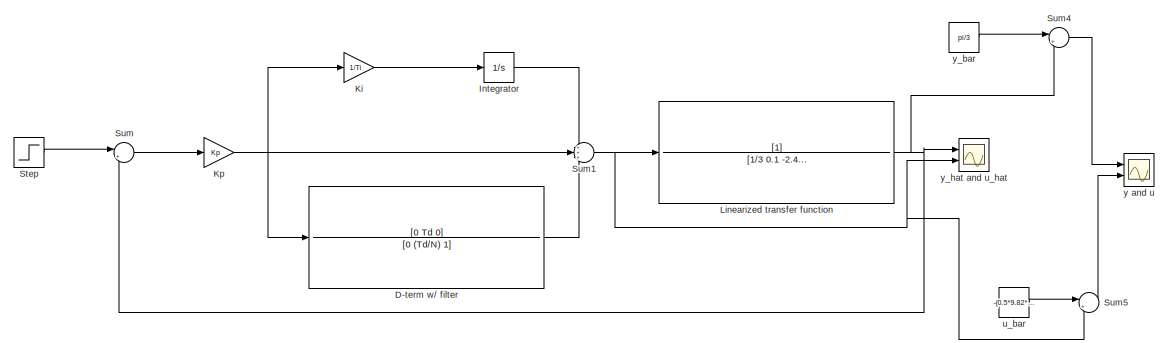
[diagram: root canvas - part 1/2, full width, top band]
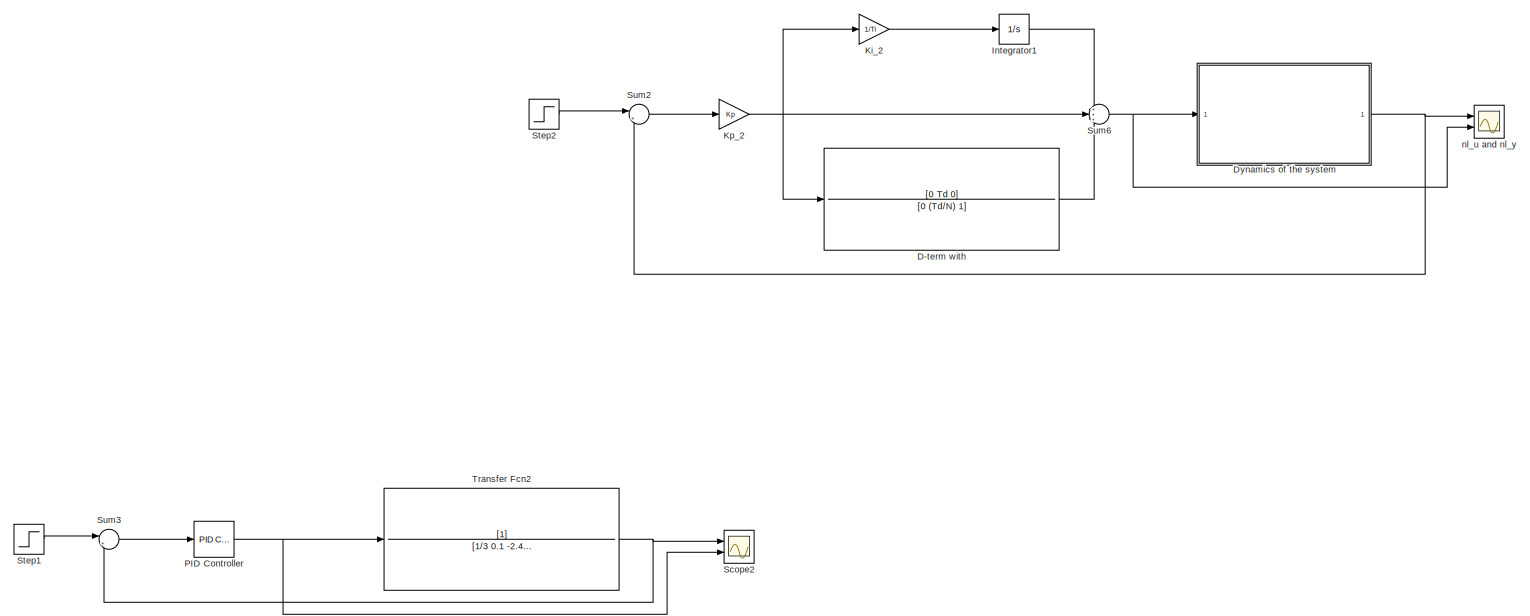
[diagram: root canvas - part 2/2, full width, bottom band]
MODEL slx_0a34d423948b
KIND model
CONFIG AbsTol = auto
CONFIG EnableMultiTasking = off
CONFIG FixedStep = auto
CONFIG MaxStep = auto
CONFIG MinStep = auto
CONFIG RelTol = 1e-3
CONFIG SampleTimeConstraint = Unconstrained
CONFIG SolverName = VariableStepAuto
CONFIG StartTime = 0.0
CONFIG StopTime = 10.0
BLOCK [TransferFcn] D-term w// filter
  Denominator = [0 (Td/N) 1]
  Numerator = [0 Td 0]
BLOCK [TransferFcn] D-term with
  Denominator = [0 (Td/N) 1]
  Numerator = [0 Td 0]
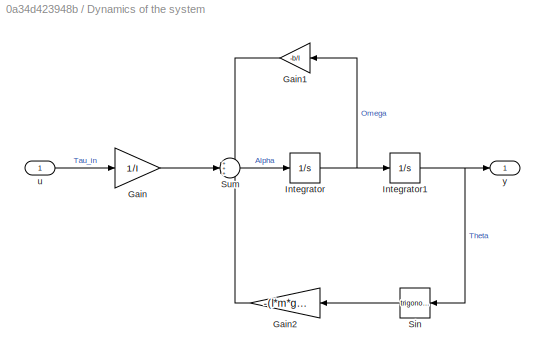
BLOCK [SubSystem] Dynamics of the system
  Ports = [1, 1]
  RequestExecContextInheritance = off
BLOCK [Gain] Dynamics of the system/Gain
  Gain = 1/I
BLOCK [Gain] Dynamics of the system/Gain1
  Gain = -b/I
BLOCK [Gain] Dynamics of the system/Gain2
  Gain = -(l*m*g)/I
BLOCK [Integrator] Dynamics of the system/Integrator
  Ports = [1, 1]
BLOCK [Integrator] Dynamics of the system/Integrator1
  Ports = [1, 1]
BLOCK [Trigonometry] Dynamics of the system/Sin
  Ports = [1, 1]
BLOCK [Sum] Dynamics of the system/Sum
  Inputs = +++
  Ports = [3, 1]
BLOCK [Inport] Dynamics of the system/u
BLOCK [Outport] Dynamics of the system/y
BLOCK [Integrator] Integrator
  Ports = [1, 1]
BLOCK [Integrator] Integrator1
  Ports = [1, 1]
BLOCK [Gain] Ki
  Gain = 1/Ti
BLOCK [Gain] Ki_2
  Gain = 1/Ti
BLOCK [Gain] Kp
  Gain = Kp
BLOCK [Gain] Kp_2
  Gain = Kp
BLOCK [TransferFcn] Linearized transfer function
  Denominator = [1/3 0.1 -2.455]
BLOCK [Reference] PID Controller  REF=slpidlib/PID Controller
  Ports = [1, 1]
  SourceBlock = slpidlib/PID Controller
  SourceProductBaseCode = SL
  SourceType = PID 1dof
BLOCK [Scope] Scope2
  Floating = off
  NumInputPorts = 2
  Ports = [2]
  ScopeSpecificationString = Simulink.scopes.TimeScopeBlockCfg('CurrentConfiguration', extmgr.ConfigurationSet(extmgr.Configuration('Core','General UI',true),extmgr.Configuration('Core','Source UI',true),extmgr.Configuration('Sources','WiredSimulink',true,'DataLoggingVariableName','ScopeData2'),extmgr.Configuration('Visuals','Time Domain',true,'SerializedDisplays',{struct('MinYLimReal','-0.19606','MaxYLimReal','1.76452','YLab...<+2065ch>
BLOCK [Step] Step
  After = pi/3
  SampleTime = 0
BLOCK [Step] Step1
  SampleTime = 0
BLOCK [Step] Step2
  After = pi/3
  SampleTime = 0
BLOCK [Sum] Sum
  Inputs = |+-
  Ports = [2, 1]
BLOCK [Sum] Sum1
  Inputs = +++
  Ports = [3, 1]
BLOCK [Sum] Sum2
  Inputs = |+-
  Ports = [2, 1]
BLOCK [Sum] Sum3
  Inputs = |+-
  Ports = [2, 1]
BLOCK [Sum] Sum4
  Inputs = |++
  Ports = [2, 1]
BLOCK [Sum] Sum5
  Inputs = |++
  Ports = [2, 1]
BLOCK [Sum] Sum6
  Inputs = +++
  Ports = [3, 1]
BLOCK [TransferFcn] Transfer Fcn2
  Denominator = [1/3 0.1 -2.455]
BLOCK [Scope] nl_u and nl_y
  Floating = off
  NumInputPorts = 2
  Ports = [2]
  ScopeSpecificationString = Simulink.scopes.TimeScopeBlockCfg('CurrentConfiguration', extmgr.ConfigurationSet(extmgr.Configuration('Core','General UI',true),extmgr.Configuration('Core','Source UI',true),extmgr.Configuration('Sources','WiredSimulink',true,'DataLoggingVariableName','ScopeData1'),extmgr.Configuration('Visuals','Time Domain',true,'SerializedDisplays',{struct('MinYLimReal','-0.14649','MaxYLimReal','1.3184','YLabe...<+2049ch>
BLOCK [Constant] u_bar
  Value = -(0.5*9.82*1*sqrt(3))/2
BLOCK [Scope] y and u
  Floating = off
  NumInputPorts = 2
  Ports = [2]
  ScopeSpecificationString = Simulink.scopes.TimeScopeBlockCfg('CurrentConfiguration', extmgr.ConfigurationSet(extmgr.Configuration('Core','General UI',true),extmgr.Configuration('Core','Source UI',true),extmgr.Configuration('Sources','WiredSimulink',true,'DataLoggingVariableName','ScopeData3'),extmgr.Configuration('Visuals','Time Domain',true,'SerializedDisplays',{struct('MinYLimReal','0.89763','MaxYLimReal','2.39331','YLabe...<+2051ch>
BLOCK [Constant] y_bar
  Value = pi/3
BLOCK [Scope] y_hat and u_hat
  Floating = off
  NumInputPorts = 2
  Ports = [2]
  ScopeSpecificationString = Simulink.scopes.TimeScopeBlockCfg('CurrentConfiguration', extmgr.ConfigurationSet(extmgr.Configuration('Core','General UI',true),extmgr.Configuration('Core','Source UI',true),extmgr.Configuration('Sources','WiredSimulink',true),extmgr.Configuration('Visuals','Time Domain',true,'SerializedDisplays',{struct('MinYLimReal','-0.14957','MaxYLimReal','1.34611','YLabelReal','','MinYLimMag','0.00000','MaxY...<+2015ch>
LINE D-term w// filter:1 -> Sum1:3
LINE D-term with:1 -> Sum6:3
LINE Dynamics of the system/Gain1:1 -> Dynamics of the system/Sum:1
LINE Dynamics of the system/Gain2:1 -> Dynamics of the system/Sum:3
LINE Dynamics of the system/Gain:1 -> Dynamics of the system/Sum:2
NET Dynamics of the system/Integrator1:1 -> Dynamics of the system/Sin:1, Dynamics of the system/y:1
NET Dynamics of the system/Integrator:1 -> Dynamics of the system/Gain1:1, Dynamics of the system/Integrator1:1
LINE Dynamics of the system/Sin:1 -> Dynamics of the system/Gain2:1
LINE Dynamics of the system/Sum:1 -> Dynamics of the system/Integrator:1
LINE Dynamics of the system/u:1 -> Dynamics of the system/Gain:1
NET Dynamics of the system:1 -> Sum2:2, nl_u and nl_y:1
LINE Integrator1:1 -> Sum6:1
LINE Integrator:1 -> Sum1:1
LINE Ki:1 -> Integrator:1
LINE Ki_2:1 -> Integrator1:1
NET Kp:1 -> D-term w// filter:1, Ki:1, Sum1:2
NET Kp_2:1 -> D-term with:1, Ki_2:1, Sum6:2
NET Linearized transfer function:1 -> Sum4:2, Sum:2, y_hat and u_hat:1
NET PID Controller:1 -> Scope2:2, Transfer Fcn2:1
LINE Step1:1 -> Sum3:1
LINE Step2:1 -> Sum2:1
LINE Step:1 -> Sum:1
NET Sum1:1 -> Linearized transfer function:1, Sum5:2, y_hat and u_hat:2
LINE Sum2:1 -> Kp_2:1
LINE Sum3:1 -> PID Controller:1
LINE Sum4:1 -> y and u:1
LINE Sum5:1 -> y and u:2
NET Sum6:1 -> Dynamics of the system:1, nl_u and nl_y:2
LINE Sum:1 -> Kp:1
NET Transfer Fcn2:1 -> Scope2:1, Sum3:2
LINE u_bar:1 -> Sum5:1
LINE y_bar:1 -> Sum4:1
note: NET lines group one-source signal fan-out (src -> all destinations, sorted); 1:1 wires keep LINE
